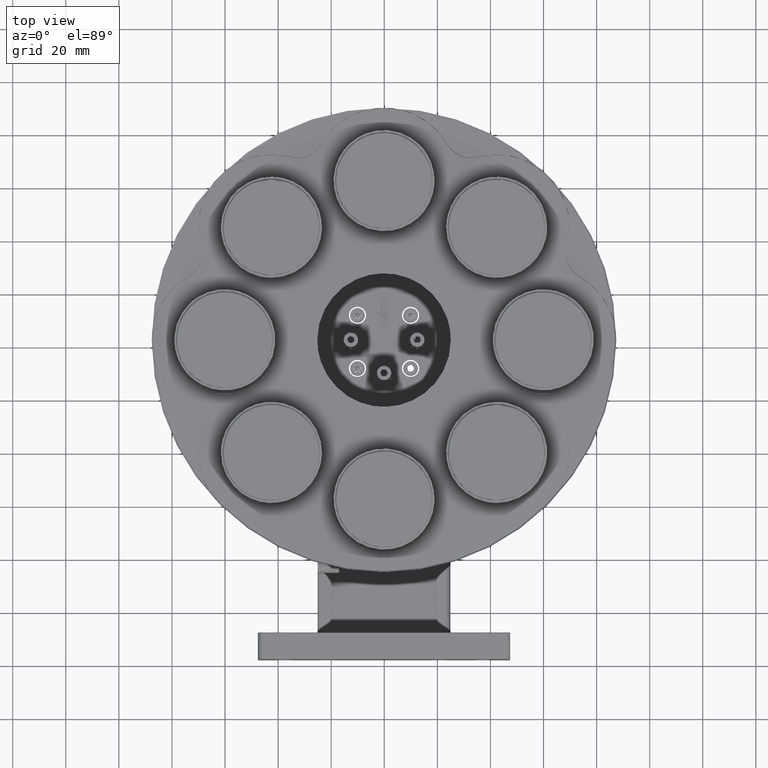
[diagram: clean part render]
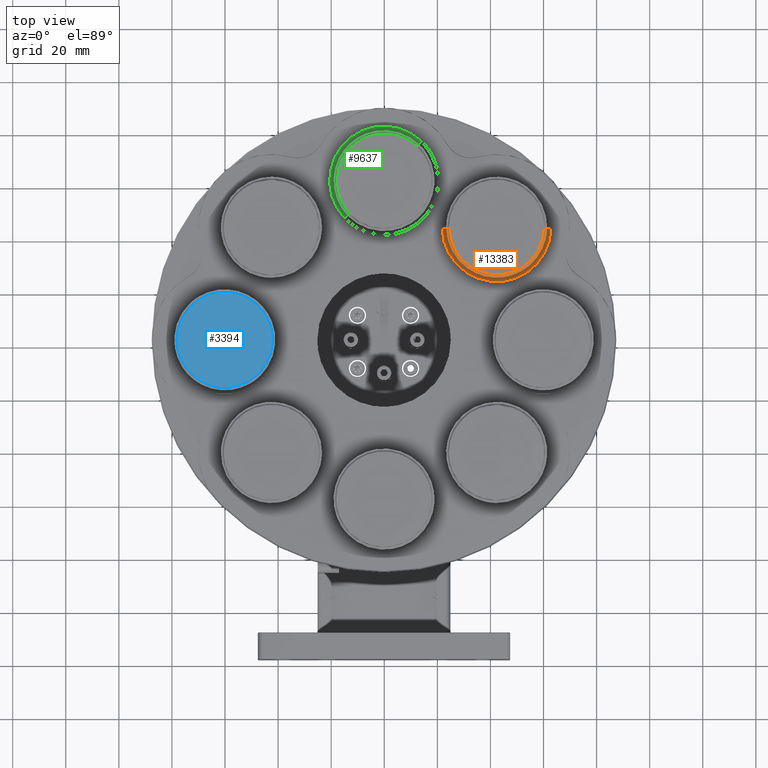
[diagram: same view with three faces highlighted in distinct colors, each labeled with its STEP entity id]
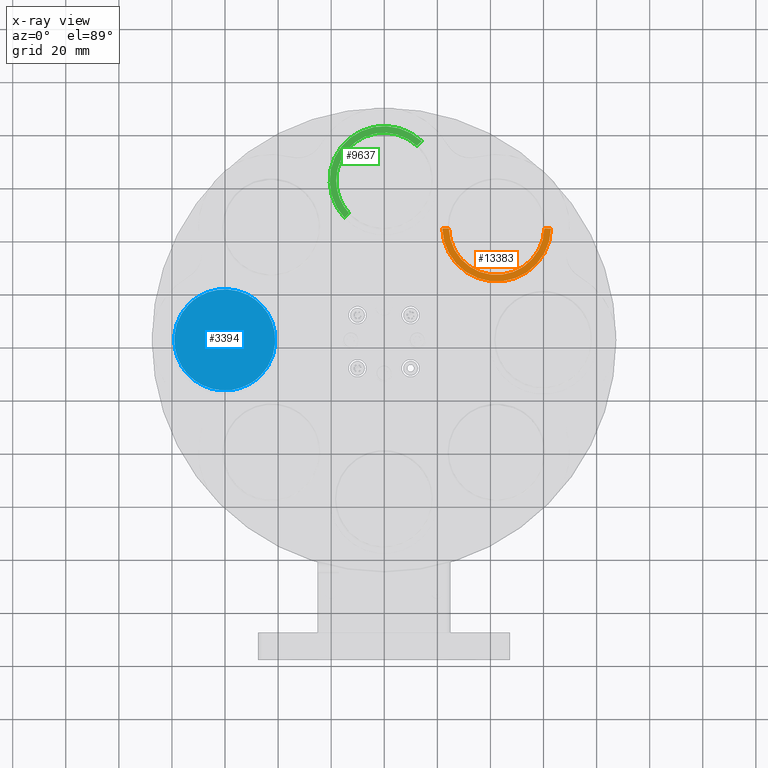
[diagram: x-ray of the same camera — body ghosted, the three highlighted faces saturated]
A machine part, top view with three faces highlighted in distinct colors.
The next image is the same camera in x-ray (body ghosted, the three faces saturated) — at least one of them is partly hidden behind the body in this view.
Their STEP definitions:

[orange] entity #13383 — the highlighted planar face has unit normal (0, 0, 1).
#147 = VERTEX_POINT ( 'NONE', #3194 ) ;
#268 = PLANE ( 'NONE',  #13256 ) ;
#344 = VECTOR ( 'NONE', #7803, 1000.000000000000000 ) ;
#510 = CARTESIAN_POINT ( 'NONE',  ( 22.32527890542090176, 104.6521945024657327, 180.7499999999716351 ) ) ;
#647 = CARTESIAN_POINT ( 'NONE',  ( 4.331705234482261524, 104.1712511081833981, 180.7499999999716351 ) ) ;
#685 = CIRCLE ( 'NONE', #6904, 20.50000000000001066 ) ;
#716 = ORIENTED_EDGE ( 'NONE', *, *, #11752, .F. ) ;
#804 = VERTEX_POINT ( 'NONE', #3805 ) ;
#1886 = AXIS2_PLACEMENT_3D ( 'NONE', #12989, #12085, #14521 ) ;
#2789 = FACE_OUTER_BOUND ( 'NONE', #12894, .T. ) ;
#2855 = CARTESIAN_POINT ( 'NONE',  ( 42.81863939683950804, 104.1304898266541841, 180.7499999999716351 ) ) ;
#2960 = DIRECTION ( 'NONE',  ( 1.000000000000000000, 0.000000000000000000, -0.000000000000000000 ) ) ;
#3194 = CARTESIAN_POINT ( 'NONE',  ( 1.830859320583823724, 104.1738997391168908, 180.7499999999716351 ) ) ;
#3805 = CARTESIAN_POINT ( 'NONE',  ( 40.31779348294107024, 104.1331384575876768, 180.7499999999716351 ) ) ;
#4600 = DIRECTION ( 'NONE',  ( -1.000000000000000000, 0.000000000000000000, 0.000000000000000000 ) ) ;
#5013 = CIRCLE ( 'NONE', #1886, 18.00000000000000711 ) ;
#5981 = EDGE_CURVE ( 'NONE', #6573, #804, #8873, .T. ) ;
#6573 = VERTEX_POINT ( 'NONE', #6582 ) ;
#6582 = CARTESIAN_POINT ( 'NONE',  ( 42.81863939683950804, 104.1304898266541841, 180.7499999999716351 ) ) ;
#6904 = AXIS2_PLACEMENT_3D ( 'NONE', #10791, #7108, #4600 ) ;
#7108 = DIRECTION ( 'NONE',  ( 6.608466678381711495E-16, -6.998987490601375804E-19, 1.000000000000000000 ) ) ;
#7461 = VERTEX_POINT ( 'NONE', #9807 ) ;
#7803 = DIRECTION ( 'NONE',  ( -0.9999994391604082322, 0.001059093418477741059, 0.000000000000000000 ) ) ;
#7959 = DIRECTION ( 'NONE',  ( -0.9999994391604082322, 0.001059093418477738240, 0.000000000000000000 ) ) ;
#8873 = LINE ( 'NONE', #2855, #344 ) ;
#9445 = ORIENTED_EDGE ( 'NONE', *, *, #9934, .F. ) ;
#9807 = CARTESIAN_POINT ( 'NONE',  ( 4.331705234482261524, 104.1712511081833981, 180.7499999999716351 ) ) ;
#9934 = EDGE_CURVE ( 'NONE', #147, #6573, #685, .T. ) ;
#10421 = LINE ( 'NONE', #647, #11697 ) ;
#10791 = CARTESIAN_POINT ( 'NONE',  ( 22.32527890542090176, 104.6521945024657327, 180.7499999999716351 ) ) ;
#11697 = VECTOR ( 'NONE', #7959, 1000.000000000000114 ) ;
#11752 = EDGE_CURVE ( 'NONE', #7461, #147, #10421, .T. ) ;
#12085 = DIRECTION ( 'NONE',  ( 0.000000000000000000, 0.000000000000000000, -1.000000000000000000 ) ) ;
#12475 = ORIENTED_EDGE ( 'NONE', *, *, #15458, .F. ) ;
#12894 = EDGE_LOOP ( 'NONE', ( #12475, #14853, #9445, #716 ) ) ;
#12989 = CARTESIAN_POINT ( 'NONE',  ( 22.32527890542090176, 104.6521945024657327, 180.7499999999716351 ) ) ;
#13256 = AXIS2_PLACEMENT_3D ( 'NONE', #510, #14113, #2960 ) ;
#13383 = ADVANCED_FACE ( 'NONE', ( #2789 ), #268, .F. ) ;
#14113 = DIRECTION ( 'NONE',  ( 0.000000000000000000, 0.000000000000000000, 1.000000000000000000 ) ) ;
#14521 = DIRECTION ( 'NONE',  ( -1.000000000000000000, 0.000000000000000000, 0.000000000000000000 ) ) ;
#14853 = ORIENTED_EDGE ( 'NONE', *, *, #5981, .F. ) ;
#15458 = EDGE_CURVE ( 'NONE', #804, #7461, #5013, .T. ) ;

[blue] entity #3394 — the highlighted planar face has unit normal (-0, 0, 1).
#62 = CARTESIAN_POINT ( 'NONE',  ( -62.83864434209195338, 54.16649056669237439, 176.7499999999716636 ) ) ;
#103 = CARTESIAN_POINT ( 'NONE',  ( -69.53030764507882111, 46.37741328315650691, 176.7499999999716920 ) ) ;
#145 = CARTESIAN_POINT ( 'NONE',  ( -77.48446768333916168, 81.14100934722837621, 176.7499999999716351 ) ) ;
#226 = CARTESIAN_POINT ( 'NONE',  ( -86.62463524190087583, 80.12921540096327533, 176.7499999999716636 ) ) ;
#309 = CARTESIAN_POINT ( 'NONE',  ( -69.27493245424099655, 77.90052654673795018, 176.7499999999716636 ) ) ;
#389 = CARTESIAN_POINT ( 'NONE',  ( -69.18702855607260460, 77.83944436651660226, 176.7499999999716351 ) ) ;
#678 = ORIENTED_EDGE ( 'NONE', *, *, #15254, .T. ) ;
#683 = CARTESIAN_POINT ( 'NONE',  ( -98.73006435271312853, 66.20974219502083713, 176.7499999999716351 ) ) ;
#768 = CARTESIAN_POINT ( 'NONE',  ( -98.48891291300741102, 67.22360814874569712, 176.7499999999716636 ) ) ;
#844 = CARTESIAN_POINT ( 'NONE',  ( -98.78006810905780810, 58.48326266743778490, 176.7499999999717488 ) ) ;
#920 = CARTESIAN_POINT ( 'NONE',  ( -95.94950231386827966, 51.65496731055078783, 176.7499999999716636 ) ) ;
#1000 = CARTESIAN_POINT ( 'NONE',  ( -84.16206492627716784, 43.61348537582428975, 176.7499999999716636 ) ) ;
#1049 = CARTESIAN_POINT ( 'NONE',  ( -61.48882571032635980, 58.16485067076522597, 176.7499999999717488 ) ) ;
#1082 = CARTESIAN_POINT ( 'NONE',  ( -87.07672053650435373, 44.48717236337628833, 176.7499999999716920 ) ) ;
#1209 = CARTESIAN_POINT ( 'NONE',  ( -61.39060381238612507, 65.80715274433785567, 176.7499999999716920 ) ) ;
#1251 = CARTESIAN_POINT ( 'NONE',  ( -71.96805896970859351, 44.98810201515115637, 176.7499999999716636 ) ) ;
#1291 = CARTESIAN_POINT ( 'NONE',  ( -61.05116512981106069, 60.91101663222288209, 176.7499999999716351 ) ) ;
#1335 = CARTESIAN_POINT ( 'NONE',  ( -87.73819293496966054, 44.77359021530440941, 176.7499999999716636 ) ) ;
#1374 = CARTESIAN_POINT ( 'NONE',  ( -72.39339712378753688, 79.64689346490102650, 176.7499999999716636 ) ) ;
#1458 = CARTESIAN_POINT ( 'NONE',  ( -84.63458370410465648, 80.73970573726776934, 176.7499999999716636 ) ) ;
#1537 = CARTESIAN_POINT ( 'NONE',  ( -89.06284740485904194, 79.05620419354366391, 176.7499999999717204 ) ) ;
#1616 = CARTESIAN_POINT ( 'NONE',  ( -90.76793220450879573, 78.00942874499148161, 176.7499999999716636 ) ) ;
#1904 = CARTESIAN_POINT ( 'NONE',  ( -98.61504607176325976, 57.69233189287479746, 176.7499999999716920 ) ) ;
#1910 = CARTESIAN_POINT ( 'NONE',  ( -87.14812643675428205, 79.92576763454613342, 176.7499999999716920 ) ) ;
#1979 = CARTESIAN_POINT ( 'NONE',  ( -95.50436353334272610, 73.43653717048049145, 176.7499999999716636 ) ) ;
#2060 = CARTESIAN_POINT ( 'NONE',  ( -92.51632571589897225, 47.75639766571385536, 176.7499999999716636 ) ) ;
#2141 = CARTESIAN_POINT ( 'NONE',  ( -97.55332538174540957, 69.86285260046315670, 176.7499999999716920 ) ) ;
#2182 = CARTESIAN_POINT ( 'NONE',  ( -61.47219157882933871, 58.24183306754808598, 176.7499999999716920 ) ) ;
#2216 = CARTESIAN_POINT ( 'NONE',  ( -98.00455573545785626, 55.70228035505792263, 176.7499999999716636 ) ) ;
#2258 = CARTESIAN_POINT ( 'NONE',  ( -62.02543908832641506, 56.15100985754703800, 176.7499999999716636 ) ) ;
#2343 = CARTESIAN_POINT ( 'NONE',  ( -61.43886894105935426, 66.05057183840249024, 176.7499999999716636 ) ) ;
#2380 = CARTESIAN_POINT ( 'NONE',  ( -78.46276265538722328, 43.22628302520282517, 176.7499999999716920 ) ) ;
#2427 = CARTESIAN_POINT ( 'NONE',  ( -65.63164962451695317, 49.81071838462093382, 176.7499999999716351 ) ) ;
#2492 = B_SPLINE_CURVE_WITH_KNOTS ( 'NONE', 3,
 ( #16022, #10894, #2427, #12203, #4706, #9682, #14647, #12446, #13667, #3555, #13430, #14803, #62, #7208, #3476, #10977, #8527, #15945, #2258, #7375, #2508, #9757, #1049, #2182, #4864, #1291, #7452, #3646, #14725, #12366, #1209, #13507, #2343, #7289, #12285, #16105, #9923, #14888, #3725, #7532, #4045, #7616, #9018, #12693, #13988, #12529, #11541, #3965, #2588, #4131, #9102, #7783, #10083, #15050, #2919, #5191, #389, #3884, #309, #5108, #10322, #10162, #11377, #13910, #1374, #5272, #5349, #8852, #15131, #6481, #5030, #6859, #11300, #6320, #145, #8939, #13827, #8089, #2673, #13745, #13076, #2833, #12616, #1458, #6401, #226, #1910, #14072, #2749, #7700, #10239, #11845, #1537, #11462, #15213, #12781, #1616, #6562, #15294, #10004, #14965, #3799 ),
 .UNSPECIFIED., .F., .F.,
 ( 4, 1, 1, 1, 1, 2, 2, 1, 1, 1, 1, 2, 2, 1, 1, 1, 2, 2, 2, 1, 1, 1, 2, 2, 1, 1, 1, 1, 2, 2, 1, 1, 1, 1, 2, 2, 2, 1, 1, 1, 1, 2, 2, 1, 1, 1, 1, 2, 2, 1, 1, 1, 2, 2, 2, 1, 1, 1, 2, 2, 1, 1, 1, 1, 2, 2, 1, 1, 1, 1, 2, 2, 4 ),
 ( 0.000000000000000000, 0.03124999999998711447, 0.04687499999998057804, 0.05468749999997730288, 0.05859374999997545019, 0.06054687499997446487, 0.06249999999997347955, 0.09374999999995976829, 0.1093749999999528988, 0.1171874999999497763, 0.1210937499999483608, 0.1230468749999475142, 0.1249999999999466677, 0.1562499999999364675, 0.1718749999999313605, 0.1796874999999288069, 0.1835937499999276967, 0.1874999999999265587, 0.2499999999999100719, 0.2812499999999014677, 0.2968749999998975264, 0.3046874999998958611, 0.3085937499998953615, 0.3124999999998948619, 0.3437499999998890887, 0.3593749999998862021, 0.3671874999998848144, 0.3710937499998844258, 0.3730468749998842037, 0.3749999999998839817, 0.4062499999998807620, 0.4218749999998793188, 0.4296874999998785971, 0.4335937499998780420, 0.4355468749998775979, 0.4374999999998770983, 0.4999999999998682165, 0.5312499999998635536, 0.5468749999998614442, 0.5546874999998601119, 0.5585937499998596678, 0.5605468749998597788, 0.5624999999998598899, 0.5937499999998671063, 0.6093749999998709921, 0.6171874999998726574, 0.6210937499998729905, 0.6230468749998733236, 0.6249999999998736566, 0.6562499999998845368, 0.6718749999998904210, 0.6796874999998934186, 0.6835937499998948619, 0.6874999999998964162, 0.7499999999999126254, 0.7812499999999211742, 0.7968749999999250599, 0.8046874999999272804, 0.8085937499999287237, 0.8124999999999300559, 0.8437499999999427125, 0.8593749999999490408, 0.8671874999999520384, 0.8710937499999532596, 0.8730468749999542588, 0.8749999999999551470, 0.9062499999999685807, 0.9218749999999754641, 0.9296874999999791278, 0.9335937499999809042, 0.9355468749999819034, 0.9374999999999830136, 1.000000000000000000 ),
 .UNSPECIFIED. ) ;
#2508 = CARTESIAN_POINT ( 'NONE',  ( -61.57758410241312674, 57.77294740665708872, 176.7499999999716920 ) ) ;
#2547 = CARTESIAN_POINT ( 'NONE',  ( -85.09894848334351991, 43.83800268407360790, 176.7499999999716920 ) ) ;
#2588 = CARTESIAN_POINT ( 'NONE',  ( -64.38388931395225256, 72.99018244504992481, 176.7499999999716351 ) ) ;
#2630 = CARTESIAN_POINT ( 'NONE',  ( -76.35860300192626937, 43.54684748798683103, 176.7499999999716920 ) ) ;
#2673 = CARTESIAN_POINT ( 'NONE',  ( -82.87504745444454102, 81.07791102972289821, 176.7499999999716351 ) ) ;
#2749 = CARTESIAN_POINT ( 'NONE',  ( -87.51942351769847050, 79.77210036561518791, 176.7499999999716351 ) ) ;
#2833 = CARTESIAN_POINT ( 'NONE',  ( -83.84365292963055083, 80.90472777455727282, 176.7499999999716920 ) ) ;
#2861 = AXIS2_PLACEMENT_3D ( 'NONE', #10994, #4486, #13294 ) ;
#2919 = CARTESIAN_POINT ( 'NONE',  ( -68.89032220627106540, 77.62898453445063751, 176.7499999999716920 ) ) ;
#3126 = CARTESIAN_POINT ( 'NONE',  ( -99.15114654777887893, 61.56840213169317622, 176.7499999999717204 ) ) ;
#3205 = CARTESIAN_POINT ( 'NONE',  ( -98.17681684329086522, 68.30056540484423522, 176.7499999999716351 ) ) ;
#3269 = CARTESIAN_POINT ( 'NONE',  ( -66.63074378416847310, 48.75540344966969286, 176.7499999999716636 ) ) ;
#3275 = CARTESIAN_POINT ( 'NONE',  ( -94.39515445134264837, 49.57909161395564013, 176.7499999999716351 ) ) ;
#3355 = CARTESIAN_POINT ( 'NONE',  ( -90.38661035966457291, 46.17918412336258882, 176.7499999999716920 ) ) ;
#3365 = EDGE_LOOP ( 'NONE', ( #678, #15713 ) ) ;
#3394 = ADVANCED_FACE ( 'NONE', ( #3493 ), #7227, .T. ) ;
#3433 = CARTESIAN_POINT ( 'NONE',  ( -99.15109080175840006, 63.54055863043510044, 176.7499999999716351 ) ) ;
#3476 = CARTESIAN_POINT ( 'NONE',  ( -62.68002213212853491, 54.51805678931807364, 176.7499999999716920 ) ) ;
#3493 = FACE_OUTER_BOUND ( 'NONE', #3365, .T. ) ;
#3555 = CARTESIAN_POINT ( 'NONE',  ( -64.05452445782674431, 51.94030523744019234, 176.7499999999716636 ) ) ;
#3594 = CARTESIAN_POINT ( 'NONE',  ( -73.57762068960271051, 44.32235986159452779, 176.7499999999716636 ) ) ;
#3646 = CARTESIAN_POINT ( 'NONE',  ( -61.10162335968642822, 63.86415294148932276, 176.7499999999716351 ) ) ;
#3685 = CARTESIAN_POINT ( 'NONE',  ( -76.51976285266326272, 43.51526347789157256, 176.7499999999716636 ) ) ;
#3725 = CARTESIAN_POINT ( 'NONE',  ( -62.55481523142833566, 69.64408318320124636, 176.7499999999716636 ) ) ;
#3799 = CARTESIAN_POINT ( 'NONE',  ( -93.57151214737561418, 75.69617181287748053, 176.7499999999716636 ) ) ;
#3837 = CARTESIAN_POINT ( 'NONE',  ( -69.43432372702245914, 46.44214651756249168, 176.7499999999716636 ) ) ;
#3884 = CARTESIAN_POINT ( 'NONE',  ( -69.24678370108371439, 77.88104219904286651, 176.7499999999716636 ) ) ;
#3965 = CARTESIAN_POINT ( 'NONE',  ( -64.36084715059274686, 72.95646859483804292, 176.7499999999716920 ) ) ;
#4045 = CARTESIAN_POINT ( 'NONE',  ( -62.60281411740122337, 69.75658856824429677, 176.7499999999716636 ) ) ;
#4131 = CARTESIAN_POINT ( 'NONE',  ( -65.06452581663425860, 73.97998588976554402, 176.7499999999716636 ) ) ;
#4352 = CARTESIAN_POINT ( 'NONE',  ( -97.83974323369635329, 69.20138020193023465, 176.7499999999716920 ) ) ;
#4431 = CARTESIAN_POINT ( 'NONE',  ( -94.57060630705248627, 74.64085687790081636, 176.7499999999716636 ) ) ;
#4486 = DIRECTION ( 'NONE',  ( -0.000000000000000000, 0.000000000000000000, 1.000000000000000000 ) ) ;
#4506 = CARTESIAN_POINT ( 'NONE',  ( -95.65216956825160821, 73.22928937835358454, 176.7499999999716351 ) ) ;
#4579 = CARTESIAN_POINT ( 'NONE',  ( -98.85744870151381747, 58.88632162051024466, 176.7499999999717204 ) ) ;
#4659 = CARTESIAN_POINT ( 'NONE',  ( -93.98340672993030864, 75.28427723032282870, 176.7499999999716636 ) ) ;
#4706 = CARTESIAN_POINT ( 'NONE',  ( -64.69789239821247406, 51.01503809205556195, 176.7499999999716636 ) ) ;
#4864 = CARTESIAN_POINT ( 'NONE',  ( -61.18590624985962023, 59.60912734851090988, 176.7499999999716636 ) ) ;
#4901 = CARTESIAN_POINT ( 'NONE',  ( -84.08508252951000372, 43.59685124433194403, 176.7499999999716067 ) ) ;
#4986 = CARTESIAN_POINT ( 'NONE',  ( -87.70427117932480598, 44.75878188613855713, 176.7499999999716351 ) ) ;
#5030 = CARTESIAN_POINT ( 'NONE',  ( -75.64828774114741350, 80.74933149464082760, 176.7499999999716920 ) ) ;
#5108 = CARTESIAN_POINT ( 'NONE',  ( -69.81564557181798136, 78.27239113915189250, 176.7499999999716636 ) ) ;
#5191 = CARTESIAN_POINT ( 'NONE',  ( -69.09759610067735025, 77.77680852068519357, 176.7499999999716920 ) ) ;
#5272 = CARTESIAN_POINT ( 'NONE',  ( -72.46406299656682393, 79.67798504723873521, 176.7499999999716636 ) ) ;
#5349 = CARTESIAN_POINT ( 'NONE',  ( -72.49798475222071659, 79.69279337640888627, 176.7499999999716920 ) ) ;
#5568 = CARTESIAN_POINT ( 'NONE',  ( -99.01634968170988316, 64.84244791368840310, 176.7499999999717204 ) ) ;
#5643 = CARTESIAN_POINT ( 'NONE',  ( -97.64744070011295207, 54.80749207933128275, 176.7499999999716920 ) ) ;
#5725 = CARTESIAN_POINT ( 'NONE',  ( -96.63352031131475428, 71.72607012884139976, 176.7499999999716067 ) ) ;
#5803 = CARTESIAN_POINT ( 'NONE',  ( -91.01522737546740416, 46.61213089602562576, 176.7499999999716351 ) ) ;
#5876 = CARTESIAN_POINT ( 'NONE',  ( -88.16042503039852818, 44.96330400761976165, 176.7499999999716636 ) ) ;
#5949 = CARTESIAN_POINT ( 'NONE',  ( -76.76166195497712863, 43.46946689552858345, 176.7499999999716636 ) ) ;
#6038 = CARTESIAN_POINT ( 'NONE',  ( -69.75545193635100816, 46.22851956329095202, 176.7499999999716351 ) ) ;
#6250 = VERTEX_POINT ( 'NONE', #11314 ) ;
#6279 = CARTESIAN_POINT ( 'NONE',  ( -72.68283241383818449, 44.67947489693391105, 176.7499999999716920 ) ) ;
#6320 = CARTESIAN_POINT ( 'NONE',  ( -76.11717340202585547, 80.85472401821361643, 176.7499999999716067 ) ) ;
#6401 = CARTESIAN_POINT ( 'NONE',  ( -85.56486926425870365, 80.49546255088898761, 176.7499999999716636 ) ) ;
#6481 = CARTESIAN_POINT ( 'NONE',  ( -75.10330744816906190, 80.61357257846822222, 176.7499999999717204 ) ) ;
#6562 = CARTESIAN_POINT ( 'NONE',  ( -90.83180892933286543, 77.96606844645572210, 176.7499999999716636 ) ) ;
#6696 = CARTESIAN_POINT ( 'NONE',  ( -93.57151214737561418, 75.69617181287748053, 176.7499999999716636 ) ) ;
#6854 = CARTESIAN_POINT ( 'NONE',  ( -97.69430303797128090, 54.91864151132950411, 176.7499999999716920 ) ) ;
#6859 = CARTESIAN_POINT ( 'NONE',  ( -75.88324393776112231, 80.80316621899501683, 176.7499999999716920 ) ) ;
#6928 = CARTESIAN_POINT ( 'NONE',  ( -95.71479683295488883, 73.13986940042155993, 176.7499999999716351 ) ) ;
#7008 = CARTESIAN_POINT ( 'NONE',  ( -95.13773011486397024, 50.47158937274341639, 176.7499999999716636 ) ) ;
#7089 = CARTESIAN_POINT ( 'NONE',  ( -97.33881358184363819, 54.09271863513802714, 176.7499999999716920 ) ) ;
#7167 = CARTESIAN_POINT ( 'NONE',  ( -95.84140878094449079, 51.49510666769732836, 176.7499999999716920 ) ) ;
#7208 = CARTESIAN_POINT ( 'NONE',  ( -62.72696572804083104, 54.41222860673810402, 176.7499999999716636 ) ) ;
#7227 = PLANE ( 'NONE',  #2861 ) ;
#7246 = CARTESIAN_POINT ( 'NONE',  ( -77.32720847716858259, 43.37366423280759165, 176.7499999999717204 ) ) ;
#7289 = CARTESIAN_POINT ( 'NONE',  ( -61.58720985976908935, 66.75924336961126926, 176.7499999999717488 ) ) ;
#7323 = CARTESIAN_POINT ( 'NONE',  ( -75.56767222740860745, 43.71186952528753977, 176.7499999999717204 ) ) ;
#7375 = CARTESIAN_POINT ( 'NONE',  ( -61.71334301859160831, 57.22796711368455647, 176.7499999999717204 ) ) ;
#7452 = CARTESIAN_POINT ( 'NONE',  ( -61.05110938375253937, 62.88317313079859616, 176.7499999999716636 ) ) ;
#7489 = CARTESIAN_POINT ( 'NONE',  ( -66.63074378416847310, 48.75540344966969286, 176.7499999999716636 ) ) ;
#7532 = CARTESIAN_POINT ( 'NONE',  ( -62.58629874466206644, 69.71810671175495600, 176.7499999999716920 ) ) ;
#7572 = CARTESIAN_POINT ( 'NONE',  ( -74.63738666723138238, 43.95611271167239664, 176.7499999999716920 ) ) ;
#7616 = CARTESIAN_POINT ( 'NONE',  ( -62.86344234964472122, 70.35885662731297430, 176.7499999999716920 ) ) ;
#7644 = VERTEX_POINT ( 'NONE', #3269 ) ;
#7700 = CARTESIAN_POINT ( 'NONE',  ( -87.59344704625279121, 79.74061685238253006, 176.7499999999717204 ) ) ;
#7783 = CARTESIAN_POINT ( 'NONE',  ( -67.04256493613466716, 76.10801589499932618, 176.7499999999717204 ) ) ;
#8082 = CARTESIAN_POINT ( 'NONE',  ( -99.10063257183543328, 60.58742232096084734, 176.7499999999716920 ) ) ;
#8089 = CARTESIAN_POINT ( 'NONE',  ( -81.73949327624890770, 81.22529223732213666, 176.7499999999716636 ) ) ;
#8166 = CARTESIAN_POINT ( 'NONE',  ( -98.62467182916303443, 66.67862785582190099, 176.7499999999716636 ) ) ;
#8245 = CARTESIAN_POINT ( 'NONE',  ( -97.61595718688056422, 54.73346855078468565, 176.7499999999716636 ) ) ;
#8329 = CARTESIAN_POINT ( 'NONE',  ( -89.60141046345469817, 45.69339528579033782, 176.7499999999716351 ) ) ;
#8410 = CARTESIAN_POINT ( 'NONE',  ( -96.93154452790385278, 53.26406819196686371, 176.7499999999716920 ) ) ;
#8527 = CARTESIAN_POINT ( 'NONE',  ( -62.63412222063607970, 54.62264441772159529, 176.7499999999716351 ) ) ;
#8567 = CARTESIAN_POINT ( 'NONE',  ( -84.31901199377188050, 43.64840904355033047, 176.7499999999716067 ) ) ;
#8653 = CARTESIAN_POINT ( 'NONE',  ( -72.79398184584245257, 44.63261255907649883, 176.7499999999716920 ) ) ;
#8852 = CARTESIAN_POINT ( 'NONE',  ( -73.12553539501570299, 79.96440289916687050, 176.7499999999716920 ) ) ;
#8939 = CARTESIAN_POINT ( 'NONE',  ( -78.78635696642284358, 81.27575046727687891, 176.7499999999716067 ) ) ;
#9018 = CARTESIAN_POINT ( 'NONE',  ( -63.27071140354267698, 71.18750707041201053, 176.7499999999716351 ) ) ;
#9102 = CARTESIAN_POINT ( 'NONE',  ( -65.80710148023516126, 74.87248364863292238, 176.7499999999716920 ) ) ;
#9320 = CARTESIAN_POINT ( 'NONE',  ( -91.72087417466593706, 47.12493341771651245, 176.7499999999716920 ) ) ;
#9402 = CARTESIAN_POINT ( 'NONE',  ( -97.13168013365938691, 70.77178323204115884, 176.7499999999716351 ) ) ;
#9480 = CARTESIAN_POINT ( 'NONE',  ( -96.09839603371572991, 51.88011160179735981, 176.7499999999716920 ) ) ;
#9551 = CARTESIAN_POINT ( 'NONE',  ( -95.77586688123224690, 73.05198314281261673, 176.7499999999716920 ) ) ;
#9638 = CARTESIAN_POINT ( 'NONE',  ( -96.14773147371704454, 72.51127002510050090, 176.7499999999716636 ) ) ;
#9682 = CARTESIAN_POINT ( 'NONE',  ( -64.55008636329839078, 51.22228588418761319, 176.7499999999716636 ) ) ;
#9757 = CARTESIAN_POINT ( 'NONE',  ( -61.52374937805561927, 58.00790360326753614, 176.7499999999716067 ) ) ;
#9796 = CARTESIAN_POINT ( 'NONE',  ( -84.55396819037828493, 43.70224376790324072, 176.7499999999716636 ) ) ;
#9923 = CARTESIAN_POINT ( 'NONE',  ( -62.40114796249276452, 69.27278610225968691, 176.7499999999716920 ) ) ;
#9959 = CARTESIAN_POINT ( 'NONE',  ( -79.44374246615042523, 43.17576904926256987, 176.7499999999717204 ) ) ;
#10004 = CARTESIAN_POINT ( 'NONE',  ( -91.85547313588504892, 77.26228875690193831, 176.7499999999716351 ) ) ;
#10083 = CARTESIAN_POINT ( 'NONE',  ( -67.68593021561554224, 76.69517759679713720, 176.7499999999716636 ) ) ;
#10162 = CARTESIAN_POINT ( 'NONE',  ( -71.55513236483756145, 79.25633979907344440, 176.7499999999716920 ) ) ;
#10239 = CARTESIAN_POINT ( 'NONE',  ( -87.63192890274457625, 79.72410147964299654, 176.7499999999716920 ) ) ;
#10322 = CARTESIAN_POINT ( 'NONE',  ( -70.60084546798167082, 78.75817997669960846, 176.7499999999716351 ) ) ;
#10536 = CARTESIAN_POINT ( 'NONE',  ( -98.81165211915211444, 58.64442251818380214, 176.7499999999716920 ) ) ;
#10617 = CARTESIAN_POINT ( 'NONE',  ( -95.88476907947094219, 51.55898339250668272, 176.7499999999716351 ) ) ;
#10697 = CARTESIAN_POINT ( 'NONE',  ( -98.76338699048618253, 58.40100342415232149, 176.7499999999716636 ) ) ;
#10773 = CARTESIAN_POINT ( 'NONE',  ( -90.95547223045836915, 46.57053306350181998, 176.7499999999717204 ) ) ;
#10851 = CARTESIAN_POINT ( 'NONE',  ( -87.91468699033173095, 44.85162539355642508, 176.7499999999716920 ) ) ;
#10894 = CARTESIAN_POINT ( 'NONE',  ( -66.21884920162834476, 49.16729803220984252, 176.7499999999717204 ) ) ;
#10977 = CARTESIAN_POINT ( 'NONE',  ( -62.64893054979867060, 54.58872266208322088, 176.7499999999716920 ) ) ;
#10994 = CARTESIAN_POINT ( 'NONE',  ( -80.10112796577203653, 62.22578763127358314, 176.7499999999716636 ) ) ;
#11013 = CARTESIAN_POINT ( 'NONE',  ( -71.13940852659152370, 45.39537106905281405, 176.7499999999717204 ) ) ;
#11255 = CARTESIAN_POINT ( 'NONE',  ( -76.27634375864637661, 43.56352860655879766, 176.7499999999716920 ) ) ;
#11270 = EDGE_CURVE ( 'NONE', #6250, #7644, #15010, .T. ) ;
#11300 = CARTESIAN_POINT ( 'NONE',  ( -76.04019100526105035, 80.83808988672190310, 176.7499999999716636 ) ) ;
#11314 = CARTESIAN_POINT ( 'NONE',  ( -93.57151214737561418, 75.69617181287748053, 176.7499999999716636 ) ) ;
#11377 = CARTESIAN_POINT ( 'NONE',  ( -72.04183090109839327, 79.48827125490234380, 176.7499999999716636 ) ) ;
#11462 = CARTESIAN_POINT ( 'NONE',  ( -89.99178814934884940, 78.51224116403068365, 176.7499999999716636 ) ) ;
#11541 = CARTESIAN_POINT ( 'NONE',  ( -64.31748685205977267, 72.89259187001741225, 176.7499999999716636 ) ) ;
#11840 = CARTESIAN_POINT ( 'NONE',  ( -97.80110796904237702, 55.17878916024071856, 176.7499999999716920 ) ) ;
#11845 = CARTESIAN_POINT ( 'NONE',  ( -88.23419696178203253, 79.46347324742420426, 176.7499999999716636 ) ) ;
#11918 = CARTESIAN_POINT ( 'NONE',  ( -98.71343022122785271, 66.28672459176036114, 176.7499999999716351 ) ) ;
#12004 = CARTESIAN_POINT ( 'NONE',  ( -91.10465983085983055, 46.67476674185355279, 176.7499999999716920 ) ) ;
#12082 = CARTESIAN_POINT ( 'NONE',  ( -88.64712356662570869, 45.19523546343082643, 176.7499999999716636 ) ) ;
#12161 = CARTESIAN_POINT ( 'NONE',  ( -97.52223379941551684, 69.93351847322753656, 176.7499999999716920 ) ) ;
#12203 = CARTESIAN_POINT ( 'NONE',  ( -65.00020747044342784, 50.60613779998542583, 176.7499999999716351 ) ) ;
#12241 = CARTESIAN_POINT ( 'NONE',  ( -81.41589896501596968, 43.17582479529568928, 176.7499999999716636 ) ) ;
#12285 = CARTESIAN_POINT ( 'NONE',  ( -61.83145304614128435, 67.68952892976912494, 176.7499999999717204 ) ) ;
#12322 = CARTESIAN_POINT ( 'NONE',  ( -72.60880888528745913, 44.71095841016567363, 176.7499999999716636 ) ) ;
#12366 = CARTESIAN_POINT ( 'NONE',  ( -61.34480723002053537, 65.56525364199448802, 176.7499999999716636 ) ) ;
#12404 = CARTESIAN_POINT ( 'NONE',  ( -70.21046778212503625, 45.93933409855345218, 176.7499999999716920 ) ) ;
#12446 = CARTESIAN_POINT ( 'NONE',  ( -64.44586718408422144, 51.37145240198783824, 176.7499999999716351 ) ) ;
#12488 = CARTESIAN_POINT ( 'NONE',  ( -68.34678279560705505, 47.18928650569721128, 176.7499999999716636 ) ) ;
#12529 = CARTESIAN_POINT ( 'NONE',  ( -64.25275361765298499, 72.79660795195697176, 176.7499999999716920 ) ) ;
#12616 = CARTESIAN_POINT ( 'NONE',  ( -83.92591217290156180, 80.88804665598738097, 176.7499999999716636 ) ) ;
#12693 = CARTESIAN_POINT ( 'NONE',  ( -63.81467443304546094, 72.11644781488898559, 176.7499999999716920 ) ) ;
#12781 = CARTESIAN_POINT ( 'NONE',  ( -90.67194828644336724, 78.07416197940223412, 176.7499999999716636 ) ) ;
#13071 = CARTESIAN_POINT ( 'NONE',  ( -98.95325136423247159, 59.45186814272414466, 176.7499999999716351 ) ) ;
#13076 = CARTESIAN_POINT ( 'NONE',  ( -83.68249307890506827, 80.93631178464976017, 176.7499999999716351 ) ) ;
#13149 = CARTESIAN_POINT ( 'NONE',  ( -97.56813371090535725, 69.82893084483114876, 176.7499999999716067 ) ) ;
#13230 = CARTESIAN_POINT ( 'NONE',  ( -93.15969099539256604, 48.34355936752722016, 176.7499999999717488 ) ) ;
#13294 = DIRECTION ( 'NONE',  ( 1.000000000000000000, 0.000000000000000000, 0.000000000000000000 ) ) ;
#13309 = CARTESIAN_POINT ( 'NONE',  ( -97.47529020350317808, 70.03934665580644037, 176.7499999999717204 ) ) ;
#13391 = CARTESIAN_POINT ( 'NONE',  ( -96.38758149842544753, 52.33512744753195989, 176.7499999999717204 ) ) ;
#13430 = CARTESIAN_POINT ( 'NONE',  ( -63.56873562022868640, 52.72550513369441205, 176.7499999999716067 ) ) ;
#13469 = CARTESIAN_POINT ( 'NONE',  ( -67.45478435425769703, 47.93136287958049024, 176.7499999999716636 ) ) ;
#13507 = CARTESIAN_POINT ( 'NONE',  ( -61.42218782248323805, 65.96831259509596634, 176.7499999999716351 ) ) ;
#13667 = CARTESIAN_POINT ( 'NONE',  ( -64.42638905031189722, 51.39959211973499009, 176.7499999999716636 ) ) ;
#13745 = CARTESIAN_POINT ( 'NONE',  ( -83.44059397660716115, 80.98210836700886261, 176.7499999999716351 ) ) ;
#13827 = CARTESIAN_POINT ( 'NONE',  ( -80.75851346544628484, 81.27580621327196297, 176.7499999999717204 ) ) ;
#13910 = CARTESIAN_POINT ( 'NONE',  ( -72.28756894118711784, 79.59994986897737590, 176.7499999999717204 ) ) ;
#13988 = CARTESIAN_POINT ( 'NONE',  ( -64.10385989778568216, 72.57146366067617294, 176.7499999999716636 ) ) ;
#14072 = CARTESIAN_POINT ( 'NONE',  ( -87.40827408568901546, 79.81896270347407096, 176.7499999999717204 ) ) ;
#14287 = CARTESIAN_POINT ( 'NONE',  ( -91.31193372526011842, 46.82259072808071210, 176.7499999999716636 ) ) ;
#14369 = CARTESIAN_POINT ( 'NONE',  ( -95.75638874746171325, 73.08012286055752327, 176.7499999999716636 ) ) ;
#14443 = CARTESIAN_POINT ( 'NONE',  ( -95.81836661759331264, 51.46139281749849204, 176.7499999999717204 ) ) ;
#14517 = CARTESIAN_POINT ( 'NONE',  ( -98.67850655350773081, 66.44367165923853236, 176.7499999999716920 ) ) ;
#14604 = CARTESIAN_POINT ( 'NONE',  ( -97.36361158945183547, 70.28508469584983231, 176.7499999999716920 ) ) ;
#14647 = CARTESIAN_POINT ( 'NONE',  ( -64.48745909859272274, 51.31170586212211759, 176.7499999999716636 ) ) ;
#14686 = CARTESIAN_POINT ( 'NONE',  ( -82.71778824833577914, 43.31056591534422040, 176.7499999999716636 ) ) ;
#14725 = CARTESIAN_POINT ( 'NONE',  ( -61.24900456729491083, 64.99970711975026916, 176.7499999999716351 ) ) ;
#14803 = CARTESIAN_POINT ( 'NONE',  ( -63.07057579788423141, 53.67979203049752357, 176.7499999999716636 ) ) ;
#14847 = CARTESIAN_POINT ( 'NONE',  ( -86.17590573947512667, 44.15009875380189186, 176.7499999999716636 ) ) ;
#14888 = CARTESIAN_POINT ( 'NONE',  ( -62.50795289356800311, 69.53293375119261555, 176.7499999999717204 ) ) ;
#14965 = CARTESIAN_POINT ( 'NONE',  ( -92.74747157723440694, 76.52021238301868777, 176.7499999999716636 ) ) ;
#15001 = CARTESIAN_POINT ( 'NONE',  ( -69.33673774298551962, 46.50854582246751079, 176.7499999999716636 ) ) ;
#15010 = B_SPLINE_CURVE_WITH_KNOTS ( 'NONE', 3,
 ( #6696, #4659, #4431, #15589, #1979, #4506, #6928, #14369, #9551, #9638, #5725, #9402, #14604, #13309, #12161, #2141, #13149, #4352, #3205, #768, #8166, #14517, #11918, #683, #5568, #3433, #3126, #8082, #13071, #4579, #10536, #844, #10697, #1904, #15508, #2216, #11840, #6854, #5643, #8245, #15665, #7089, #8410, #13391, #9480, #920, #10617, #7167, #14443, #7008, #3275, #13230, #2060, #9320, #14287, #12004, #5803, #10773, #15741, #3355, #8329, #12082, #5876, #10851, #15817, #1335, #4986, #1082, #14847, #2547, #9796, #8567, #1000, #4901, #14686, #12241, #9959, #2380, #7246, #5949, #3685, #2630, #11255, #7323, #7572, #3594, #15980, #8653, #6279, #12322, #16061, #1251, #11013, #12404, #6038, #103, #3837, #15899, #15001, #12488, #13469, #7489 ),
 .UNSPECIFIED., .F., .F.,
 ( 4, 1, 1, 1, 1, 2, 2, 1, 1, 1, 1, 2, 2, 1, 1, 1, 2, 2, 2, 1, 1, 1, 2, 2, 1, 1, 1, 1, 2, 2, 1, 1, 1, 1, 2, 2, 2, 1, 1, 1, 1, 2, 2, 1, 1, 1, 1, 2, 2, 1, 1, 1, 2, 2, 2, 1, 1, 1, 2, 2, 1, 1, 1, 1, 2, 2, 1, 1, 1, 1, 2, 2, 4 ),
 ( 0.000000000000000000, 0.03125000000001521699, 0.04687500000002288447, 0.05468750000002700618, 0.05859375000002885192, 0.06054687500002986500, 0.06250000000003087808, 0.09375000000003863576, 0.1093750000000428407, 0.1171875000000450889, 0.1210937500000465322, 0.1230468750000472539, 0.1250000000000479894, 0.1562500000000540401, 0.1718750000000569544, 0.1796875000000584255, 0.1835937500000592582, 0.1875000000000600631, 0.2500000000000754397, 0.2812500000000831557, 0.2968750000000870415, 0.3046875000000890399, 0.3085937500000899836, 0.3125000000000909273, 0.3437500000000963674, 0.3593750000000992539, 0.3671875000001006972, 0.3710937500001012523, 0.3730468750001015299, 0.3750000000001018075, 0.4062500000001031397, 0.4218750000001034728, 0.4296875000001037503, 0.4335937500001038614, 0.4355468750001039724, 0.4375000000001040279, 0.5000000000001000311, 0.5312500000000975886, 0.5468750000000963674, 0.5546875000000958122, 0.5585937500000952571, 0.5605468750000947020, 0.5625000000000940359, 0.5937500000000843769, 0.6093750000000796030, 0.6171875000000771605, 0.6210937500000758282, 0.6230468750000749401, 0.6250000000000739409, 0.6562500000000665024, 0.6718750000000631717, 0.6796875000000615064, 0.6835937500000607292, 0.6875000000000599520, 0.7500000000000440759, 0.7812500000000366374, 0.7968750000000331957, 0.8046875000000317524, 0.8085937500000307532, 0.8125000000000298650, 0.8437500000000210942, 0.8593750000000166533, 0.8671875000000140998, 0.8710937500000129896, 0.8730468750000123235, 0.8750000000000117684, 0.9062500000000091038, 0.9218750000000079936, 0.9296875000000075495, 0.9335937500000073275, 0.9355468750000071054, 0.9375000000000069944, 1.000000000000000000 ),
 .UNSPECIFIED. ) ;
#15050 = CARTESIAN_POINT ( 'NONE',  ( -68.48138175685599549, 77.32664184480351821, 176.7499999999716920 ) ) ;
#15131 = CARTESIAN_POINT ( 'NONE',  ( -74.02635019202692490, 80.30147650873816190, 176.7499999999716351 ) ) ;
#15213 = CARTESIAN_POINT ( 'NONE',  ( -90.44680399515212343, 78.22305569927777924, 176.7499999999716636 ) ) ;
#15254 = EDGE_CURVE ( 'NONE', #7644, #6250, #2492, .T. ) ;
#15294 = CARTESIAN_POINT ( 'NONE',  ( -90.86551818856020191, 77.94302944007802125, 176.7499999999716067 ) ) ;
#15508 = CARTESIAN_POINT ( 'NONE',  ( -98.37080288538227535, 56.76204633267112598, 176.7499999999716351 ) ) ;
#15589 = CARTESIAN_POINT ( 'NONE',  ( -95.20204846111971619, 73.84543746254270502, 176.7499999999716636 ) ) ;
#15665 = CARTESIAN_POINT ( 'NONE',  ( -97.59944181414637399, 54.69498669430892335, 176.7499999999716636 ) ) ;
#15713 = ORIENTED_EDGE ( 'NONE', *, *, #11270, .T. ) ;
#15741 = CARTESIAN_POINT ( 'NONE',  ( -90.92732347730697029, 46.55104871581129089, 176.7499999999716920 ) ) ;
#15817 = CARTESIAN_POINT ( 'NONE',  ( -87.80885880774171426, 44.80468179763828829, 176.7499999999715783 ) ) ;
#15899 = CARTESIAN_POINT ( 'NONE',  ( -69.37044700220465643, 46.48550681609489743, 176.7499999999716920 ) ) ;
#15945 = CARTESIAN_POINT ( 'NONE',  ( -62.36251269788963469, 55.25019506052785800, 176.7499999999716920 ) ) ;
#15980 = CARTESIAN_POINT ( 'NONE',  ( -73.05412949476618678, 44.52580762800721459, 176.7499999999716636 ) ) ;
#16022 = CARTESIAN_POINT ( 'NONE',  ( -66.63074378416847310, 48.75540344966969286, 176.7499999999716636 ) ) ;
#16061 = CARTESIAN_POINT ( 'NONE',  ( -72.57032702880280794, 44.72747378290243603, 176.7499999999716351 ) ) ;
#16105 = CARTESIAN_POINT ( 'NONE',  ( -62.19770019607081935, 68.74929490740908022, 176.7499999999717204 ) ) ;

[green] entity #9637 — the highlighted planar face has unit normal (-0, 0, 1).
#1176 = CARTESIAN_POINT ( 'NONE',  ( -34.96102305259767462, 108.1036943725334680, 180.7499999999716351 ) ) ;
#2232 = DIRECTION ( 'NONE',  ( 1.000000000000000000, 0.000000000000000000, 0.000000000000000000 ) ) ;
#2248 = CARTESIAN_POINT ( 'NONE',  ( -7.717828340735547243, 135.2892439272373508, 180.7499999999716351 ) ) ;
#2704 = PLANE ( 'NONE',  #3518 ) ;
#3429 = CARTESIAN_POINT ( 'NONE',  ( -20.10112796577204008, 122.2257876312729792, 180.7499999999716351 ) ) ;
#3518 = AXIS2_PLACEMENT_3D ( 'NONE', #4759, #11106, #2232 ) ;
#4314 = DIRECTION ( 'NONE',  ( 0.7078552767511875343, 0.7063574924749504991, 0.000000000000000000 ) ) ;
#4324 = ORIENTED_EDGE ( 'NONE', *, *, #6554, .F. ) ;
#4540 = VERTEX_POINT ( 'NONE', #8356 ) ;
#4620 = CARTESIAN_POINT ( 'NONE',  ( -7.717828340735549908, 135.2892439272373508, 180.7499999999716351 ) ) ;
#4759 = CARTESIAN_POINT ( 'NONE',  ( -20.10112796577204008, 122.2257876312729792, 180.7499999999716351 ) ) ;
#4762 = EDGE_CURVE ( 'NONE', #11971, #4540, #12355, .T. ) ;
#6298 = CIRCLE ( 'NONE', #15427, 20.50000000000003553 ) ;
#6554 = EDGE_CURVE ( 'NONE', #8071, #8817, #12877, .T. ) ;
#7894 = ORIENTED_EDGE ( 'NONE', *, *, #8064, .F. ) ;
#8064 = EDGE_CURVE ( 'NONE', #4540, #8071, #6298, .T. ) ;
#8071 = VERTEX_POINT ( 'NONE', #1176 ) ;
#8221 = ORIENTED_EDGE ( 'NONE', *, *, #4762, .F. ) ;
#8356 = CARTESIAN_POINT ( 'NONE',  ( -5.947590371421359379, 137.0557361667636940, 180.7499999999716351 ) ) ;
#8817 = VERTEX_POINT ( 'NONE', #12056 ) ;
#9272 = EDGE_CURVE ( 'NONE', #8817, #11971, #14714, .T. ) ;
#9637 = ADVANCED_FACE ( 'NONE', ( #14700 ), #2704, .F. ) ;
#10552 = AXIS2_PLACEMENT_3D ( 'NONE', #3429, #13388, #14601 ) ;
#11106 = DIRECTION ( 'NONE',  ( -0.000000000000000000, 0.000000000000000000, 1.000000000000000000 ) ) ;
#11971 = VERTEX_POINT ( 'NONE', #4620 ) ;
#12056 = CARTESIAN_POINT ( 'NONE',  ( -33.19078508328347965, 109.8701866120597970, 180.7499999999716351 ) ) ;
#12110 = DIRECTION ( 'NONE',  ( 0.7078552767511785415, 0.7063574924749594919, 0.000000000000000000 ) ) ;
#12175 = CARTESIAN_POINT ( 'NONE',  ( -20.10112796577204008, 122.2257876312729792, 180.7499999999716351 ) ) ;
#12355 = LINE ( 'NONE', #2248, #13289 ) ;
#12416 = DIRECTION ( 'NONE',  ( 4.677840633045085911E-16, 4.667942570013017200E-16, 1.000000000000000000 ) ) ;
#12877 = LINE ( 'NONE', #15471, #14142 ) ;
#13289 = VECTOR ( 'NONE', #12110, 1000.000000000000000 ) ;
#13388 = DIRECTION ( 'NONE',  ( 0.000000000000000000, 0.000000000000000000, -1.000000000000000000 ) ) ;
#13437 = ORIENTED_EDGE ( 'NONE', *, *, #9272, .F. ) ;
#14142 = VECTOR ( 'NONE', #4314, 1000.000000000000000 ) ;
#14601 = DIRECTION ( 'NONE',  ( -1.000000000000000000, 0.000000000000000000, 0.000000000000000000 ) ) ;
#14700 = FACE_OUTER_BOUND ( 'NONE', #15634, .T. ) ;
#14714 = CIRCLE ( 'NONE', #10552, 17.99999999999999289 ) ;
#15427 = AXIS2_PLACEMENT_3D ( 'NONE', #12175, #12416, #16075 ) ;
#15471 = CARTESIAN_POINT ( 'NONE',  ( -34.96102305259766752, 108.1036943725334822, 180.7499999999716351 ) ) ;
#15634 = EDGE_LOOP ( 'NONE', ( #13437, #4324, #7894, #8221 ) ) ;
#16075 = DIRECTION ( 'NONE',  ( -1.000000000000000000, -2.030895776753331614E-15, 0.000000000000000000 ) ) ;